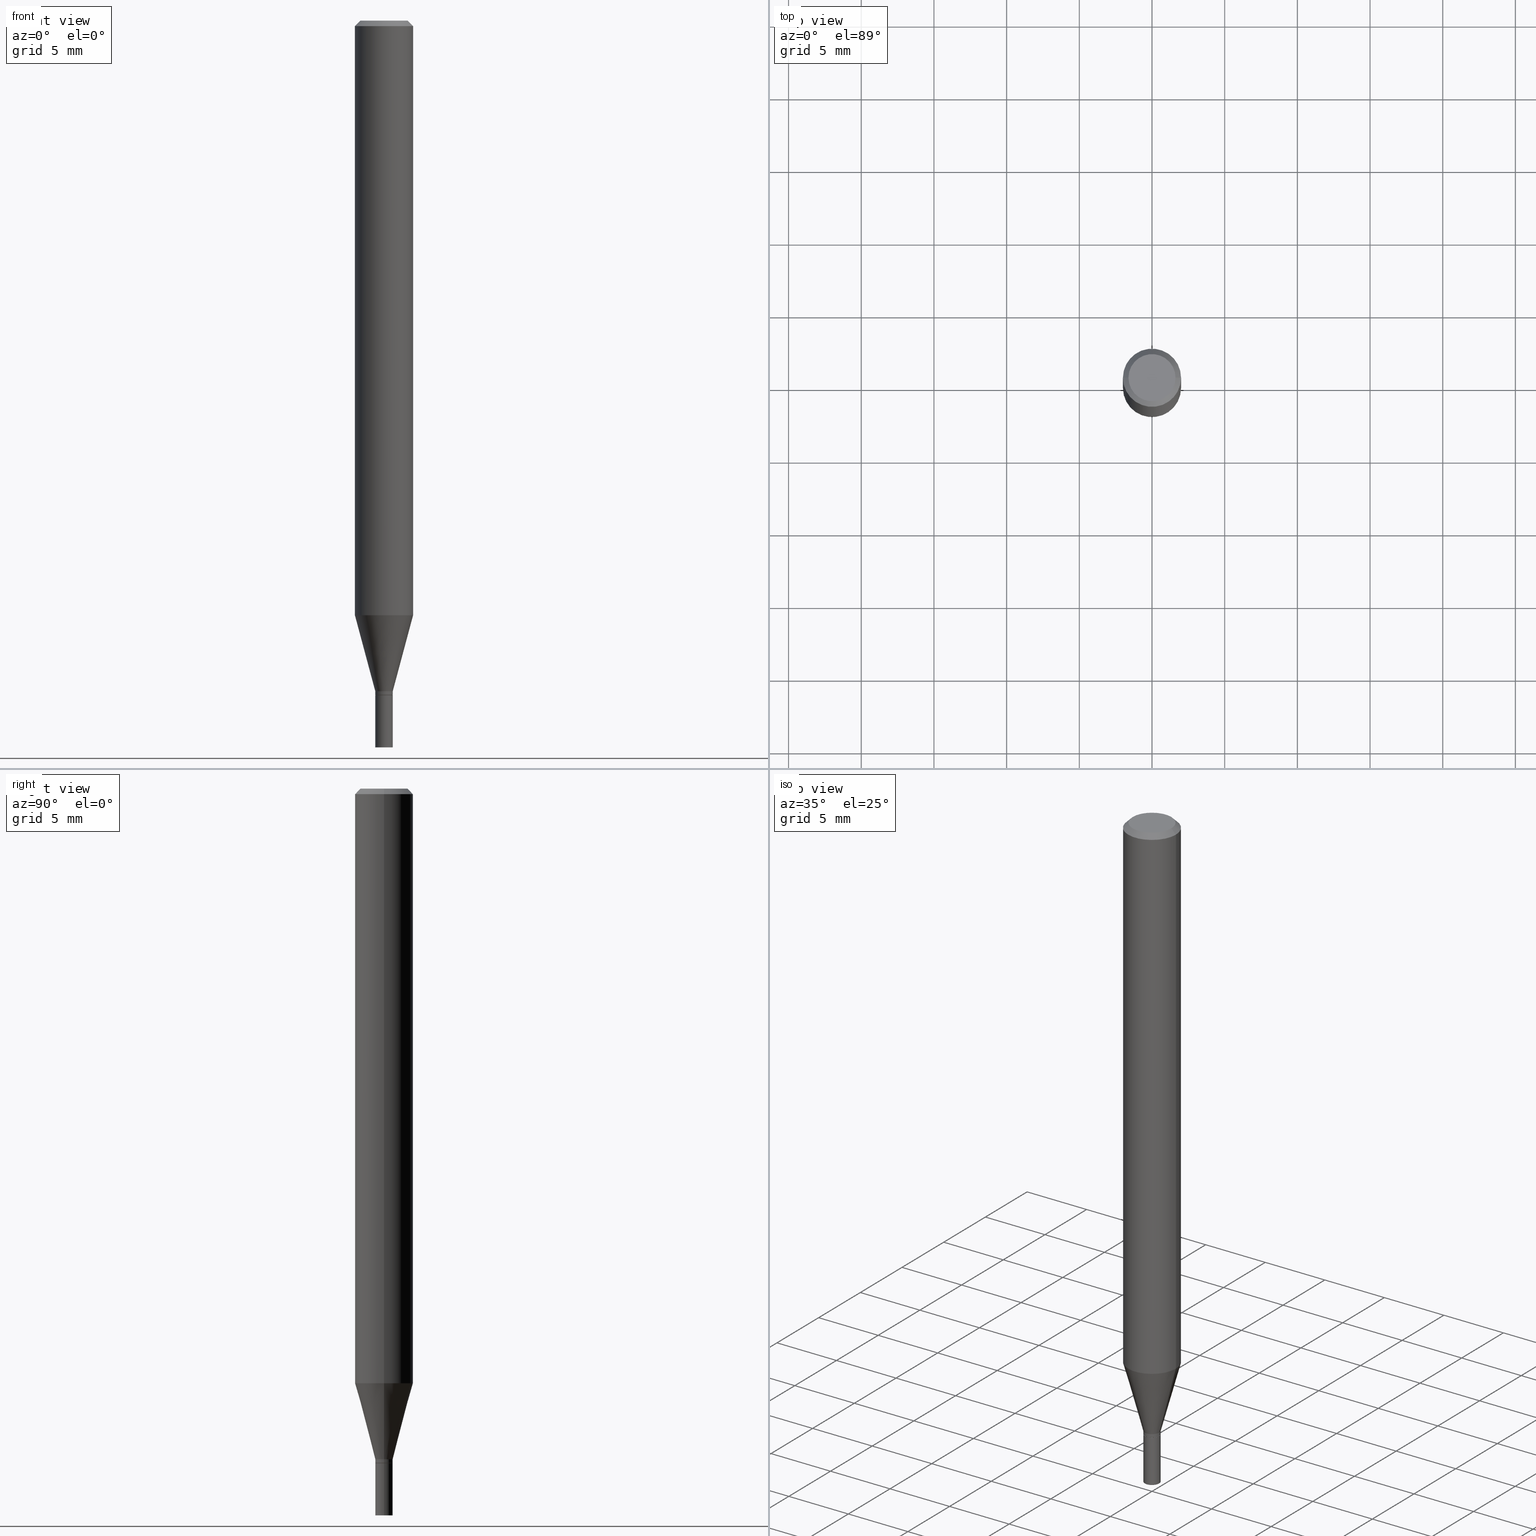
[diagram: canonical four-view strip — front | top / right | iso, engineering-drawing reading convention]
A machine part, canonical four-view strip (front | top / right | iso — engineering-drawing reading convention). The complete STEP part file that produces these views, byte-faithful:
ISO-10303-21;
HEADER;
FILE_DESCRIPTION (( 'STEP AP203' ),
    '1' );
FILE_NAME ('01885.STEP',
    '2024-03-20T02:26:14',
    ( '' ),
    ( '' ),
    'SwSTEP 2.0',
    'SolidWorks 2023',
    '' );
FILE_SCHEMA (( 'CONFIG_CONTROL_DESIGN' ));
ENDSEC;

DATA;
#1 = EDGE_CURVE ( 'NONE', #81, #277, #159, .T. ) ;
#2 = CC_DESIGN_PERSON_AND_ORGANIZATION_ASSIGNMENT ( #62, #101, ( #411 ) ) ;
#3 = FACE_OUTER_BOUND ( 'NONE', #235, .T. ) ;
#4 = ORIENTED_EDGE ( 'NONE', *, *, #184, .F. ) ;
#5 = CARTESIAN_POINT ( 'NONE',  ( 3.938861333544927198E-29, -5.623650077882775197E-15, -1.610677397962577695 ) ) ;
#6 = ORIENTED_EDGE ( 'NONE', *, *, #153, .F. ) ;
#7 = DIRECTION ( 'NONE',  ( 1.000000000000000000, -6.982962677686267499E-15, 4.876176775795936353E-29 ) ) ;
#8 = AXIS2_PLACEMENT_3D ( 'NONE', #54, #255, #25 ) ;
#9 = APPLICATION_CONTEXT ( 'configuration controlled 3d designs of mechanical parts and assemblies' ) ;
#10 = ORIENTED_EDGE ( 'NONE', *, *, #152, .T. ) ;
#11 = ORIENTED_EDGE ( 'NONE', *, *, #1, .T. ) ;
#12 = PLANE ( 'NONE',  #201 ) ;
#13 = EDGE_CURVE ( 'NONE', #268, #266, #401, .T. ) ;
#14 = LOCAL_TIME ( 22, 26, 14.00000000000000000, #213 ) ;
#15 = FACE_OUTER_BOUND ( 'NONE', #124, .T. ) ;
#16 = APPROVAL ( #218, 'UNSPECIFIED' ) ;
#17 = DIRECTION ( 'NONE',  ( -2.445468806185136597E-29, 3.491481338843145583E-15, 1.000000000000000000 ) ) ;
#18 = DIRECTION ( 'NONE',  ( -2.445468806185136597E-29, 3.491481338843145583E-15, 1.000000000000000000 ) ) ;
#19 = CALENDAR_DATE ( 2024, 19, 3 ) ;
#20 = VERTEX_POINT ( 'NONE', #251 ) ;
#21 = FACE_OUTER_BOUND ( 'NONE', #272, .T. ) ;
#22 = CALENDAR_DATE ( 2024, 19, 3 ) ;
#23 = ORIENTED_EDGE ( 'NONE', *, *, #408, .T. ) ;
#24 = ADVANCED_FACE ( 'NONE', ( #15 ), #12, .F. ) ;
#25 = DIRECTION ( 'NONE',  ( 1.000000000000000000, -6.982962677686265922E-15, 0.000000000000000000 ) ) ;
#26 = CLOSED_SHELL ( 'NONE', ( #444, #214, #245, #301 ) ) ;
#27 = AXIS2_PLACEMENT_3D ( 'NONE', #292, #287, #102 ) ;
#28 = ORIENTED_EDGE ( 'NONE', *, *, #139, .F. ) ;
#29 = APPROVAL ( #88, 'UNSPECIFIED' ) ;
#30 = LINE ( 'NONE', #456, #299 ) ;
#31 = DIRECTION ( 'NONE',  ( -2.445468806185136597E-29, 3.491481338843145583E-15, 1.000000000000000000 ) ) ;
#32 = CALENDAR_DATE ( 2024, 19, 3 ) ;
#33 = CONICAL_SURFACE ( 'NONE', #93, 0.02309999999999999901, 0.7853981633974739252 ) ;
#34 = CARTESIAN_POINT ( 'NONE',  ( 0.02309999999999999901, -6.539544547653212693E-15, -1.826800000000000201 ) ) ;
#35 = EDGE_CURVE ( 'NONE', #210, #81, #199, .T. ) ;
#36 = CARTESIAN_POINT ( 'NONE',  ( 0.000000000000000000, 0.000000000000000000, 0.000000000000000000 ) ) ;
#37 = CARTESIAN_POINT ( 'NONE',  ( 0.02360000000000000292, -1.647979191933959273E-16, 1.150777719087840955E-30 ) ) ;
#38 = DIRECTION ( 'NONE',  ( -0.7071067811865656694, 7.493145998870420424E-15, 0.7071067811865294761 ) ) ;
#39 = ORIENTED_EDGE ( 'NONE', *, *, #74, .T. ) ;
#40 = MECHANICAL_CONTEXT ( 'NONE', #429, 'mechanical' ) ;
#41 = EDGE_CURVE ( 'NONE', #277, #81, #120, .T. ) ;
#42 = CARTESIAN_POINT ( 'NONE',  ( 0.07875000000000001443, -6.173558388750569332E-15, -1.610677397962577695 ) ) ;
#43 = VERTEX_POINT ( 'NONE', #443 ) ;
#44 = ORIENTED_EDGE ( 'NONE', *, *, #297, .F. ) ;
#45 = DIRECTION ( 'NONE',  ( -2.445468806185136597E-29, 3.491481338843145583E-15, 1.000000000000000000 ) ) ;
#46 = VECTOR ( 'NONE', #203, 39.37007874015748143 ) ;
#47 = EDGE_LOOP ( 'NONE', ( #343, #157, #356, #91 ) ) ;
#48 = DIRECTION ( 'NONE',  ( -2.445468806185136597E-29, 3.491481338843145583E-15, 1.000000000000000000 ) ) ;
#49 = DIRECTION ( 'NONE',  ( -2.445468806185136597E-29, 3.491481338843145583E-15, 1.000000000000000000 ) ) ;
#50 = PERSON_AND_ORGANIZATION ( #260, #459 ) ;
#51 = ORIENTED_EDGE ( 'NONE', *, *, #41, .T. ) ;
#52 = DIRECTION ( 'NONE',  ( -2.445468806185136877E-29, 3.491481338843145188E-15, 1.000000000000000000 ) ) ;
#53 = CIRCLE ( 'NONE', #103, 0.07875000000000000056 ) ;
#54 = CARTESIAN_POINT ( 'NONE',  ( 3.668203209277705088E-31, -5.237222008264718399E-17, -0.01499999999999999944 ) ) ;
#55 = APPROVAL_ROLE ( '' ) ;
#56 = SECURITY_CLASSIFICATION ( '', '', #253 ) ;
#57 = DIRECTION ( 'NONE',  ( 2.438088387897960049E-29, -3.491481338843145188E-15, -1.000000000000000000 ) ) ;
#58 = ADVANCED_FACE ( 'NONE', ( #413 ), #420, .F. ) ;
#59 = VERTEX_POINT ( 'NONE', #314 ) ;
#60 = DIRECTION ( 'NONE',  ( 1.000000000000000000, -6.982962677686258033E-15, 0.000000000000000000 ) ) ;
#61 = DIRECTION ( 'NONE',  ( 1.000000000000000000, -6.982962677686278543E-15, 0.000000000000000000 ) ) ;
#62 = PERSON_AND_ORGANIZATION ( #260, #459 ) ;
#63 = DIRECTION ( 'NONE',  ( 2.438088387897960049E-29, -3.491481338843145188E-15, -1.000000000000000000 ) ) ;
#64 = ADVANCED_FACE ( 'NONE', ( #163 ), #126, .T. ) ;
#65 = DATE_TIME_ROLE ( 'creation_date' ) ;
#66 = AXIS2_PLACEMENT_3D ( 'NONE', #98, #419, #362 ) ;
#67 = DIRECTION ( 'NONE',  ( -2.445468806185136597E-29, 3.491481338843145583E-15, 1.000000000000000000 ) ) ;
#68 = DIRECTION ( 'NONE',  ( -2.445468806185136597E-29, 3.491481338843145583E-15, 1.000000000000000000 ) ) ;
#69 =( LENGTH_UNIT ( ) NAMED_UNIT ( * ) SI_UNIT ( $, .METRE. ) );
#70 = CIRCLE ( 'NONE', #212, 0.06375000000000000111 ) ;
#71 = LOCAL_TIME ( 22, 26, 14.00000000000000000, #177 ) ;
#72 = DIRECTION ( 'NONE',  ( 1.000000000000000000, -6.982962677686267499E-15, 4.876176775795935793E-29 ) ) ;
#73 = DIRECTION ( 'NONE',  ( -2.445468806185136597E-29, 3.491481338843145583E-15, 1.000000000000000000 ) ) ;
#74 = EDGE_CURVE ( 'NONE', #403, #185, #384, .T. ) ;
#75 = EDGE_CURVE ( 'NONE', #445, #403, #434, .T. ) ;
#76 = CC_DESIGN_PERSON_AND_ORGANIZATION_ASSIGNMENT ( #187, #133, ( #381 ) ) ;
#77 = ORIENTED_EDGE ( 'NONE', *, *, #304, .T. ) ;
#78 = CIRCLE ( 'NONE', #85, 0.02360000000000000292 ) ;
#79 = EDGE_LOOP ( 'NONE', ( #28, #51, #303, #400 ) ) ;
#80 = FACE_OUTER_BOUND ( 'NONE', #116, .T. ) ;
#81 = VERTEX_POINT ( 'NONE', #424 ) ;
#82 = FACE_OUTER_BOUND ( 'NONE', #371, .T. ) ;
#83 = ORIENTED_EDGE ( 'NONE', *, *, #408, .F. ) ;
#84 = AXIS2_PLACEMENT_3D ( 'NONE', #345, #278, #380 ) ;
#85 = AXIS2_PLACEMENT_3D ( 'NONE', #319, #348, #60 ) ;
#86 = LOCAL_TIME ( 22, 26, 14.00000000000000000, #293 ) ;
#87 = EDGE_LOOP ( 'NONE', ( #313, #226 ) ) ;
#88 = APPROVAL_STATUS ( 'not_yet_approved' ) ;
#89 = DESIGN_CONTEXT ( 'detailed design', #9, 'design' ) ;
#90 = CC_DESIGN_PERSON_AND_ORGANIZATION_ASSIGNMENT ( #142, #389, ( #411 ) ) ;
#91 = ORIENTED_EDGE ( 'NONE', *, *, #241, .T. ) ;
#92 = DIRECTION ( 'NONE',  ( 1.000000000000000000, -6.982962677686282488E-15, 0.000000000000000000 ) ) ;
#93 = AXIS2_PLACEMENT_3D ( 'NONE', #165, #17, #61 ) ;
#94 = FACE_OUTER_BOUND ( 'NONE', #79, .T. ) ;
#95 = DIRECTION ( 'NONE',  ( -2.445468806185136877E-29, 3.491481338843145188E-15, 1.000000000000000000 ) ) ;
#96 = LINE ( 'NONE', #286, #193 ) ;
#97 = CARTESIAN_POINT ( 'NONE',  ( -0.07875000000000000056, 5.595524044110789003E-16, -3.873661383575737792E-30 ) ) ;
#98 = CARTESIAN_POINT ( 'NONE',  ( 3.668203209277705088E-31, -5.237222008264718399E-17, -0.01499999999999999944 ) ) ;
#99 = DIRECTION ( 'NONE',  ( 1.000000000000000000, -6.982962677686261977E-15, 0.000000000000000000 ) ) ;
#100 = EDGE_CURVE ( 'NONE', #43, #158, #305, .T. ) ;
#101 = PERSON_AND_ORGANIZATION_ROLE ( 'design_supplier' ) ;
#102 = DIRECTION ( 'NONE',  ( 1.000000000000000000, -6.982962677686265922E-15, 4.876176775795935793E-29 ) ) ;
#103 = AXIS2_PLACEMENT_3D ( 'NONE', #137, #145, #170 ) ;
#104 = CARTESIAN_POINT ( 'NONE',  ( 0.07875000000000000056, -5.499083108677934443E-16, 3.839989210939299016E-30 ) ) ;
#105 = CYLINDRICAL_SURFACE ( 'NONE', #186, 0.02360000000000000292 ) ;
#106 = CC_DESIGN_DATE_AND_TIME_ASSIGNMENT ( #173, #322, ( #56 ) ) ;
#107 = CARTESIAN_POINT ( 'NONE',  ( -0.02360000000000019721, -6.208804283489852262E-15, -1.826300000000000034 ) ) ;
#108 = LINE ( 'NONE', #104, #202 ) ;
#109 = DIRECTION ( 'NONE',  ( -2.445468806185136877E-29, 3.491481338843145188E-15, 1.000000000000000000 ) ) ;
#110 = DIRECTION ( 'NONE',  ( -2.445468806185136597E-29, 3.491481338843145583E-15, 1.000000000000000000 ) ) ;
#111 = CLOSED_SHELL ( 'NONE', ( #270, #64, #355, #398, #334, #267, #263, #258, #24, #58, #323, #399 ) ) ;
#112 = EDGE_CURVE ( 'NONE', #268, #185, #108, .T. ) ;
#113 = AXIS2_PLACEMENT_3D ( 'NONE', #332, #146, #175 ) ;
#114 = LINE ( 'NONE', #383, #46 ) ;
#115 = CARTESIAN_POINT ( 'NONE',  ( 0.000000000000000000, 0.000000000000000000, 0.000000000000000000 ) ) ;
#116 = EDGE_LOOP ( 'NONE', ( #440, #166, #431, #151 ) ) ;
#117 = EDGE_CURVE ( 'NONE', #43, #231, #219, .T. ) ;
#118 = ORIENTED_EDGE ( 'NONE', *, *, #183, .F. ) ;
#119 = DIRECTION ( 'NONE',  ( -2.445468806185136597E-29, 3.491481338843145583E-15, 1.000000000000000000 ) ) ;
#120 = CIRCLE ( 'NONE', #464, 0.02360000000000019721 ) ;
#121 = LOCAL_TIME ( 22, 26, 14.00000000000000000, #244 ) ;
#122 = EDGE_LOOP ( 'NONE', ( #310, #238, #44, #285 ) ) ;
#123 = CARTESIAN_POINT ( 'NONE',  ( -0.02360000000000019721, 1.676880856393850451E-16, -1.160868681300167612E-30 ) ) ;
#124 = EDGE_LOOP ( 'NONE', ( #339, #249 ) ) ;
#125 = ORIENTED_EDGE ( 'NONE', *, *, #415, .T. ) ;
#126 = CONICAL_SURFACE ( 'NONE', #441, 0.02309999999999999901, 0.7853981633974739252 ) ;
#127 = DIRECTION ( 'NONE',  ( 1.000000000000000000, -6.982962677686261977E-15, 0.000000000000000000 ) ) ;
#128 = VECTOR ( 'NONE', #259, 39.37007874015748143 ) ;
#129 = CARTESIAN_POINT ( 'NONE',  ( 3.938861333544927198E-29, -5.623650077882775197E-15, -1.610677397962577695 ) ) ;
#130 = EDGE_CURVE ( 'NONE', #231, #210, #458, .T. ) ;
#131 = LINE ( 'NONE', #97, #247 ) ;
#132 = ORIENTED_EDGE ( 'NONE', *, *, #276, .F. ) ;
#133 = PERSON_AND_ORGANIZATION_ROLE ( 'creator' ) ;
#134 = CARTESIAN_POINT ( 'NONE',  ( 0.07875000000000000056, -5.926364374071552647E-16, -0.01499999999999999944 ) ) ;
#135 = DIRECTION ( 'NONE',  ( -2.445468806185136597E-29, 3.491481338843145583E-15, 1.000000000000000000 ) ) ;
#136 = AXIS2_PLACEMENT_3D ( 'NONE', #284, #18, #176 ) ;
#137 = CARTESIAN_POINT ( 'NONE',  ( 3.668203209277705088E-31, -5.237222008264718399E-17, -0.01499999999999999944 ) ) ;
#138 = APPROVAL_STATUS ( 'not_yet_approved' ) ;
#139 = EDGE_CURVE ( 'NONE', #277, #266, #30, .T. ) ;
#140 = DIRECTION ( 'NONE',  ( -2.445468806185136597E-29, 3.491481338843145583E-15, 1.000000000000000000 ) ) ;
#141 = DIRECTION ( 'NONE',  ( 1.000000000000000000, -6.982962677686258033E-15, 0.000000000000000000 ) ) ;
#142 = PERSON_AND_ORGANIZATION ( #260, #459 ) ;
#143 = PERSON_AND_ORGANIZATION_ROLE ( 'classification_officer' ) ;
#144 = DIRECTION ( 'NONE',  ( 1.000000000000000000, -6.982962677686282488E-15, 0.000000000000000000 ) ) ;
#145 = DIRECTION ( 'NONE',  ( -2.445468806185136597E-29, 3.491481338843145583E-15, 1.000000000000000000 ) ) ;
#146 = DIRECTION ( 'NONE',  ( -2.445468806185136597E-29, 3.491481338843145583E-15, 1.000000000000000000 ) ) ;
#147 = CARTESIAN_POINT ( 'NONE',  ( 3.668203209277705088E-31, -5.237222008264718399E-17, -0.01499999999999999944 ) ) ;
#148 = CARTESIAN_POINT ( 'NONE',  ( -0.02309999999999999901, -6.214102737838076242E-15, -1.826800000000000201 ) ) ;
#149 = CIRCLE ( 'NONE', #410, 0.02360000000000000292 ) ;
#150 = APPROVAL_PERSON_ORGANIZATION ( #50, #455, #55 ) ;
#151 = ORIENTED_EDGE ( 'NONE', *, *, #41, .F. ) ;
#152 = EDGE_CURVE ( 'NONE', #387, #307, #114, .T. ) ;
#153 = EDGE_CURVE ( 'NONE', #387, #59, #78, .T. ) ;
#154 = DIRECTION ( 'NONE',  ( -2.445468806185136597E-29, 3.491481338843145583E-15, 1.000000000000000000 ) ) ;
#155 = ORIENTED_EDGE ( 'NONE', *, *, #130, .F. ) ;
#156 = APPLICATION_PROTOCOL_DEFINITION ( 'international standard', 'config_control_design', 1994, #9 ) ;
#157 = ORIENTED_EDGE ( 'NONE', *, *, #75, .F. ) ;
#158 = VERTEX_POINT ( 'NONE', #279 ) ;
#159 = CIRCLE ( 'NONE', #84, 0.02360000000000019721 ) ;
#160 = CIRCLE ( 'NONE', #8, 0.07875000000000000056 ) ;
#161 = DIRECTION ( 'NONE',  ( 1.000000000000000000, -6.982962677686282488E-15, 0.000000000000000000 ) ) ;
#162 =( GEOMETRIC_REPRESENTATION_CONTEXT ( 3 ) GLOBAL_UNCERTAINTY_ASSIGNED_CONTEXT ( ( #275 ) ) GLOBAL_UNIT_ASSIGNED_CONTEXT ( ( #404, #197, #225 ) ) REPRESENTATION_CONTEXT ( 'NONE', 'WORKASPACE' ) );
#163 = FACE_OUTER_BOUND ( 'NONE', #122, .T. ) ;
#164 = CARTESIAN_POINT ( 'NONE',  ( 4.467382415139007590E-29, -6.378238109798658663E-15, -1.826799999999999979 ) ) ;
#165 = CARTESIAN_POINT ( 'NONE',  ( 4.467382415139008150E-29, -6.378238109798659452E-15, -1.826800000000000201 ) ) ;
#166 = ORIENTED_EDGE ( 'NONE', *, *, #130, .T. ) ;
#167 = DIRECTION ( 'NONE',  ( -2.445468806185136597E-29, 3.491481338843145583E-15, 1.000000000000000000 ) ) ;
#168 = ORIENTED_EDGE ( 'NONE', *, *, #35, .F. ) ;
#169 = VECTOR ( 'NONE', #327, 39.37007874015747433 ) ;
#170 = DIRECTION ( 'NONE',  ( 1.000000000000000000, -6.982962677686265922E-15, 0.000000000000000000 ) ) ;
#171 = EDGE_LOOP ( 'NONE', ( #438, #453, #211, #118 ) ) ;
#172 = CARTESIAN_POINT ( 'NONE',  ( 0.02360000000000019721, -6.541290288322634985E-15, -1.826300000000000034 ) ) ;
#173 = DATE_AND_TIME ( #361, #14 ) ;
#174 = CC_DESIGN_DATE_AND_TIME_ASSIGNMENT ( #316, #65, ( #381 ) ) ;
#175 = DIRECTION ( 'NONE',  ( 1.000000000000000000, -6.982962677686265922E-15, 4.947888571036530338E-29 ) ) ;
#176 = DIRECTION ( 'NONE',  ( 1.000000000000000000, -6.982962677686265922E-15, 4.876176775795935232E-29 ) ) ;
#177 = COORDINATED_UNIVERSAL_TIME_OFFSET ( 5, 0, .BEHIND. ) ;
#178 = CARTESIAN_POINT ( 'NONE',  ( 4.813905344975441835E-29, -6.872981015512731707E-15, -1.968500000000000139 ) ) ;
#179 = DIRECTION ( 'NONE',  ( 1.000000000000000000, -6.982962677686282488E-15, 0.000000000000000000 ) ) ;
#180 = CONICAL_SURFACE ( 'NONE', #236, 0.02360000000000019721, 0.2617993877991500740 ) ;
#181 = CARTESIAN_POINT ( 'NONE',  ( 0.06375000000000000111, -5.149965923825465084E-16, -7.585149652132491859E-16 ) ) ;
#182 = APPROVAL_DATE_TIME ( #331, #16 ) ;
#183 = EDGE_CURVE ( 'NONE', #307, #407, #149, .T. ) ;
#184 = EDGE_CURVE ( 'NONE', #403, #445, #70, .T. ) ;
#185 = VERTEX_POINT ( 'NONE', #418 ) ;
#186 = AXIS2_PLACEMENT_3D ( 'NONE', #397, #257, #72 ) ;
#187 = PERSON_AND_ORGANIZATION ( #260, #459 ) ;
#188 = ORIENTED_EDGE ( 'NONE', *, *, #100, .T. ) ;
#189 = EDGE_CURVE ( 'NONE', #445, #20, #96, .T. ) ;
#190 = CARTESIAN_POINT ( 'NONE',  ( 4.442194086435300812E-29, -6.342275852008574901E-15, -1.816500000000000226 ) ) ;
#191 = PLANE ( 'NONE',  #392 ) ;
#192 = ORIENTED_EDGE ( 'NONE', *, *, #13, .T. ) ;
#193 = VECTOR ( 'NONE', #365, 39.37007874015748854 ) ;
#194 = AXIS2_PLACEMENT_3D ( 'NONE', #115, #333, #372 ) ;
#195 = MANIFOLD_SOLID_BREP ( 'Body-Move/Copy2[1]', #26 ) ;
#196 = ORIENTED_EDGE ( 'NONE', *, *, #274, .F. ) ;
#197 =( NAMED_UNIT ( * ) PLANE_ANGLE_UNIT ( ) SI_UNIT ( $, .RADIAN. ) );
#198 = CC_DESIGN_PERSON_AND_ORGANIZATION_ASSIGNMENT ( #269, #376, ( #308 ) ) ;
#199 = LINE ( 'NONE', #452, #457 ) ;
#200 = EDGE_LOOP ( 'NONE', ( #4, #39, #350, #435 ) ) ;
#201 = AXIS2_PLACEMENT_3D ( 'NONE', #317, #57, #346 ) ;
#202 = VECTOR ( 'NONE', #462, 39.37007874015748143 ) ;
#203 = DIRECTION ( 'NONE',  ( -2.445468806185136877E-29, 3.491481338843145188E-15, 1.000000000000000000 ) ) ;
#204 = CARTESIAN_POINT ( 'NONE',  ( 4.467382415139007590E-29, -6.378238109798658663E-15, -1.826799999999999979 ) ) ;
#205 = CARTESIAN_POINT ( 'NONE',  ( 0.000000000000000000, 0.000000000000000000, 0.000000000000000000 ) ) ;
#206 = APPROVAL_DATE_TIME ( #450, #455 ) ;
#207 = DIRECTION ( 'NONE',  ( -2.438088387897960049E-29, 3.491481338843145188E-15, 1.000000000000000000 ) ) ;
#208 = DIRECTION ( 'NONE',  ( -1.000000000000000000, 6.982962677686265922E-15, -4.876176775795935793E-29 ) ) ;
#209 = CYLINDRICAL_SURFACE ( 'NONE', #136, 0.07875000000000000056 ) ;
#210 = VERTEX_POINT ( 'NONE', #172 ) ;
#211 = ORIENTED_EDGE ( 'NONE', *, *, #276, .T. ) ;
#212 = AXIS2_PLACEMENT_3D ( 'NONE', #446, #135, #283 ) ;
#213 = COORDINATED_UNIVERSAL_TIME_OFFSET ( 5, 0, .BEHIND. ) ;
#214 = ADVANCED_FACE ( 'NONE', ( #360 ), #454, .F. ) ;
#215 = DIRECTION ( 'NONE',  ( -2.445468806185136597E-29, 3.491481338843145583E-15, 1.000000000000000000 ) ) ;
#216 = DIRECTION ( 'NONE',  ( 1.000000000000000000, -6.982962677686282488E-15, 0.000000000000000000 ) ) ;
#217 = LINE ( 'NONE', #34, #451 ) ;
#218 = APPROVAL_STATUS ( 'not_yet_approved' ) ;
#219 = LINE ( 'NONE', #148, #281 ) ;
#220 = DIRECTION ( 'NONE',  ( -1.000000000000000000, 6.982962677686265922E-15, 0.000000000000000000 ) ) ;
#221 = DIRECTION ( 'NONE',  ( 1.000000000000000000, -6.982962677686267499E-15, 4.876176775795936353E-29 ) ) ;
#222 = CIRCLE ( 'NONE', #347, 0.07875000000000000056 ) ;
#223 = AXIS2_PLACEMENT_3D ( 'NONE', #352, #167, #179 ) ;
#224 = CARTESIAN_POINT ( 'NONE',  ( 4.467382415139008150E-29, -6.378238109798659452E-15, -1.826800000000000201 ) ) ;
#225 =( NAMED_UNIT ( * ) SI_UNIT ( $, .STERADIAN. ) SOLID_ANGLE_UNIT ( ) );
#226 = ORIENTED_EDGE ( 'NONE', *, *, #183, .T. ) ;
#227 = VECTOR ( 'NONE', #109, 39.37007874015748143 ) ;
#228 = ORIENTED_EDGE ( 'NONE', *, *, #233, .F. ) ;
#229 = ORIENTED_EDGE ( 'NONE', *, *, #370, .F. ) ;
#230 = CARTESIAN_POINT ( 'NONE',  ( 0.000000000000000000, 0.000000000000000000, 0.000000000000000000 ) ) ;
#231 = VERTEX_POINT ( 'NONE', #107 ) ;
#232 = DIRECTION ( 'NONE',  ( -2.445468806185136597E-29, 3.491481338843145583E-15, 1.000000000000000000 ) ) ;
#233 = EDGE_CURVE ( 'NONE', #185, #20, #160, .T. ) ;
#234 = PRODUCT_DEFINITION_SHAPE ( 'NONE', 'NONE',  #381 ) ;
#235 = EDGE_LOOP ( 'NONE', ( #417, #125, #338, #168 ) ) ;
#236 = AXIS2_PLACEMENT_3D ( 'NONE', #190, #45, #144 ) ;
#237 = AXIS2_PLACEMENT_3D ( 'NONE', #36, #232, #7 ) ;
#238 = ORIENTED_EDGE ( 'NONE', *, *, #117, .T. ) ;
#239 = APPROVAL_ROLE ( '' ) ;
#240 = CARTESIAN_POINT ( 'NONE',  ( 4.466159680735915349E-29, -6.376492369129237160E-15, -1.826300000000000034 ) ) ;
#241 = EDGE_CURVE ( 'NONE', #20, #185, #53, .T. ) ;
#242 = CARTESIAN_POINT ( 'NONE',  ( 4.467382415139008150E-29, -6.378238109798659452E-15, -1.826800000000000201 ) ) ;
#243 = ADVANCED_BREP_SHAPE_REPRESENTATION ( '01885', ( #195, #369, #194 ), #162 ) ;
#244 = COORDINATED_UNIVERSAL_TIME_OFFSET ( 5, 0, .BEHIND. ) ;
#245 = ADVANCED_FACE ( 'NONE', ( #393 ), #448, .T. ) ;
#246 = DIRECTION ( 'NONE',  ( -2.445468806185136597E-29, 3.491481338843145583E-15, 1.000000000000000000 ) ) ;
#247 = VECTOR ( 'NONE', #52, 39.37007874015748143 ) ;
#248 = CC_DESIGN_APPROVAL ( #16, ( #56 ) ) ;
#249 = ORIENTED_EDGE ( 'NONE', *, *, #184, .T. ) ;
#250 = CARTESIAN_POINT ( 'NONE',  ( -0.02360000000000000292, -6.457921477016311471E-15, -1.826799999999999979 ) ) ;
#251 = CARTESIAN_POINT ( 'NONE',  ( -0.07875000000000000056, -2.278458744571632534E-15, -0.01499999999999999944 ) ) ;
#252 = DIRECTION ( 'NONE',  ( -2.445468806185136597E-29, 3.491481338843145583E-15, 1.000000000000000000 ) ) ;
#253 = SECURITY_CLASSIFICATION_LEVEL ( 'unclassified' ) ;
#254 = AXIS2_PLACEMENT_3D ( 'NONE', #230, #110, #294 ) ;
#255 = DIRECTION ( 'NONE',  ( -2.445468806185136597E-29, 3.491481338843145583E-15, 1.000000000000000000 ) ) ;
#256 = CARTESIAN_POINT ( 'NONE',  ( 4.466159680735915349E-29, -6.376492369129237160E-15, -1.826300000000000034 ) ) ;
#257 = DIRECTION ( 'NONE',  ( -2.445468806185136597E-29, 3.491481338843145583E-15, 1.000000000000000000 ) ) ;
#258 = ADVANCED_FACE ( 'NONE', ( #423 ), #273, .T. ) ;
#259 = DIRECTION ( 'NONE',  ( -2.445468806185136877E-29, 3.491481338843145188E-15, 1.000000000000000000 ) ) ;
#260 = PERSON ( 'UNSPECIFIED', 'UNSPECIFIED', 'UNSPECIFIED', ('UNSPECIFIED'), ('UNSPECIFIED'), ('UNSPECIFIED') ) ;
#261 = LINE ( 'NONE', #425, #169 ) ;
#262 = CIRCLE ( 'NONE', #336, 0.02309999999999999901 ) ;
#263 = ADVANCED_FACE ( 'NONE', ( #21 ), #209, .T. ) ;
#264 = ORIENTED_EDGE ( 'NONE', *, *, #117, .F. ) ;
#265 = APPROVAL_DATE_TIME ( #432, #29 ) ;
#266 = VERTEX_POINT ( 'NONE', #324 ) ;
#267 = ADVANCED_FACE ( 'NONE', ( #94 ), #422, .T. ) ;
#268 = VERTEX_POINT ( 'NONE', #42 ) ;
#269 = PERSON_AND_ORGANIZATION ( #260, #459 ) ;
#270 = ADVANCED_FACE ( 'NONE', ( #3 ), #302, .T. ) ;
#271 = ORIENTED_EDGE ( 'NONE', *, *, #112, .F. ) ;
#272 = EDGE_LOOP ( 'NONE', ( #321, #379, #353, #280 ) ) ;
#273 = CONICAL_SURFACE ( 'NONE', #66, 0.07875000000000000056, 0.7853981633974735921 ) ;
#274 = EDGE_CURVE ( 'NONE', #158, #43, #262, .T. ) ;
#275 = UNCERTAINTY_MEASURE_WITH_UNIT (LENGTH_MEASURE( 1.000000000000000082E-05 ), #404, 'distance_accuracy_value', 'NONE');
#276 = EDGE_CURVE ( 'NONE', #59, #407, #426, .T. ) ;
#277 = VERTEX_POINT ( 'NONE', #463 ) ;
#278 = DIRECTION ( 'NONE',  ( -2.445468806185136597E-29, 3.491481338843145583E-15, 1.000000000000000000 ) ) ;
#279 = CARTESIAN_POINT ( 'NONE',  ( 0.02309999999999999901, -6.539544547653212693E-15, -1.826800000000000201 ) ) ;
#280 = ORIENTED_EDGE ( 'NONE', *, *, #241, .F. ) ;
#281 = VECTOR ( 'NONE', #38, 39.37007874015748143 ) ;
#282 = CIRCLE ( 'NONE', #329, 0.02360000000000000292 ) ;
#283 = DIRECTION ( 'NONE',  ( 1.000000000000000000, -6.982962677686265922E-15, 4.947888571036530338E-29 ) ) ;
#284 = CARTESIAN_POINT ( 'NONE',  ( 0.000000000000000000, 0.000000000000000000, 0.000000000000000000 ) ) ;
#285 = ORIENTED_EDGE ( 'NONE', *, *, #354, .F. ) ;
#286 = CARTESIAN_POINT ( 'NONE',  ( -0.07875000000000000056, 4.975360907851462665E-16, -0.01499999999999999944 ) ) ;
#287 = DIRECTION ( 'NONE',  ( -2.438088387897960049E-29, 3.491481338843145188E-15, 1.000000000000000000 ) ) ;
#288 = PERSON_AND_ORGANIZATION ( #260, #459 ) ;
#289 = EDGE_CURVE ( 'NONE', #266, #268, #222, .T. ) ;
#290 = DIRECTION ( 'NONE',  ( 0.7071067811865656694, -2.468850131082446387E-15, 0.7071067811865294761 ) ) ;
#291 = AXIS2_PLACEMENT_3D ( 'NONE', #204, #252, #388 ) ;
#292 = CARTESIAN_POINT ( 'NONE',  ( 4.848906058769445083E-29, -6.822858001242805551E-15, -1.968500000000000139 ) ) ;
#293 = COORDINATED_UNIVERSAL_TIME_OFFSET ( 5, 0, .BEHIND. ) ;
#294 = DIRECTION ( 'NONE',  ( 1.000000000000000000, -6.982962677686265922E-15, 4.876176775795935232E-29 ) ) ;
#295 = DIRECTION ( 'NONE',  ( 1.000000000000000000, -6.982962677686278543E-15, 0.000000000000000000 ) ) ;
#296 = CARTESIAN_POINT ( 'NONE',  ( -0.02360000000000000292, -6.457921477016311471E-15, -1.968500000000000139 ) ) ;
#297 = EDGE_CURVE ( 'NONE', #210, #231, #430, .T. ) ;
#298 = FACE_OUTER_BOUND ( 'NONE', #200, .T. ) ;
#299 = VECTOR ( 'NONE', #349, 39.37007874015747433 ) ;
#300 = ORIENTED_EDGE ( 'NONE', *, *, #139, .T. ) ;
#301 = ADVANCED_FACE ( 'NONE', ( #309 ), #191, .F. ) ;
#302 = CYLINDRICAL_SURFACE ( 'NONE', #328, 0.02360000000000019721 ) ;
#303 = ORIENTED_EDGE ( 'NONE', *, *, #370, .T. ) ;
#304 = EDGE_CURVE ( 'NONE', #266, #20, #131, .T. ) ;
#305 = CIRCLE ( 'NONE', #402, 0.02309999999999999901 ) ;
#306 = EDGE_LOOP ( 'NONE', ( #83, #6 ) ) ;
#307 = VERTEX_POINT ( 'NONE', #250 ) ;
#308 = PRODUCT ( '01885', '01885', '', ( #40 ) ) ;
#309 = FACE_OUTER_BOUND ( 'NONE', #87, .T. ) ;
#310 = ORIENTED_EDGE ( 'NONE', *, *, #274, .T. ) ;
#311 = CARTESIAN_POINT ( 'NONE',  ( 4.442194086435300812E-29, -6.342275852008574901E-15, -1.816500000000000226 ) ) ;
#312 = CIRCLE ( 'NONE', #291, 0.02360000000000000292 ) ;
#313 = ORIENTED_EDGE ( 'NONE', *, *, #315, .T. ) ;
#314 = CARTESIAN_POINT ( 'NONE',  ( 0.02360000000000000292, -7.037778934706127955E-15, -1.968500000000000139 ) ) ;
#315 = EDGE_CURVE ( 'NONE', #407, #307, #312, .T. ) ;
#316 = DATE_AND_TIME ( #22, #121 ) ;
#317 = CARTESIAN_POINT ( 'NONE',  ( 4.451638707024993845E-16, 0.06375000000000000111, -6.018394179578767011E-16 ) ) ;
#318 = AXIS2_PLACEMENT_3D ( 'NONE', #242, #207, #414 ) ;
#319 = CARTESIAN_POINT ( 'NONE',  ( 4.813905344975441835E-29, -6.872981015512731707E-15, -1.968500000000000139 ) ) ;
#320 = DIRECTION ( 'NONE',  ( 1.000000000000000000, -6.982962677686267499E-15, 4.876176775795935793E-29 ) ) ;
#321 = ORIENTED_EDGE ( 'NONE', *, *, #304, .F. ) ;
#322 = DATE_TIME_ROLE ( 'classification_date' ) ;
#323 = ADVANCED_FACE ( 'NONE', ( #359 ), #33, .T. ) ;
#324 = CARTESIAN_POINT ( 'NONE',  ( -0.07875000000000001443, -5.064097673471695607E-15, -1.610677397962577695 ) ) ;
#325 = APPROVAL_ROLE ( '' ) ;
#326 = DIRECTION ( 'NONE',  ( 0.7071067811865653363, -7.319954787623314421E-15, -0.7071067811865295871 ) ) ;
#327 = DIRECTION ( 'NONE',  ( 0.2588190451025213501, 1.565188264969621968E-15, 0.9659258262890682012 ) ) ;
#328 = AXIS2_PLACEMENT_3D ( 'NONE', #395, #68, #221 ) ;
#329 = AXIS2_PLACEMENT_3D ( 'NONE', #178, #119, #436 ) ;
#330 = CARTESIAN_POINT ( 'NONE',  ( 4.467382415139008150E-29, -6.378238109798659452E-15, -1.826800000000000201 ) ) ;
#331 = DATE_AND_TIME ( #32, #71 ) ;
#332 = CARTESIAN_POINT ( 'NONE',  ( 1.854924686453612983E-44, -2.648340846275329000E-30, -7.585149652132525386E-16 ) ) ;
#333 = DIRECTION ( 'NONE',  ( 0.000000000000000000, 0.000000000000000000, 1.000000000000000000 ) ) ;
#334 = ADVANCED_FACE ( 'NONE', ( #340 ), #180, .T. ) ;
#335 = SHAPE_DEFINITION_REPRESENTATION ( #234, #243 ) ;
#336 = AXIS2_PLACEMENT_3D ( 'NONE', #330, #31, #295 ) ;
#337 = EDGE_LOOP ( 'NONE', ( #196, #433 ) ) ;
#338 = ORIENTED_EDGE ( 'NONE', *, *, #1, .F. ) ;
#339 = ORIENTED_EDGE ( 'NONE', *, *, #75, .T. ) ;
#340 = FACE_OUTER_BOUND ( 'NONE', #375, .T. ) ;
#341 = VECTOR ( 'NONE', #326, 39.37007874015748854 ) ;
#342 = CC_DESIGN_SECURITY_CLASSIFICATION ( #56, ( #411 ) ) ;
#343 = ORIENTED_EDGE ( 'NONE', *, *, #74, .F. ) ;
#344 = PERSON_AND_ORGANIZATION ( #260, #459 ) ;
#345 = CARTESIAN_POINT ( 'NONE',  ( 4.442194086435300812E-29, -6.342275852008574901E-15, -1.816500000000000226 ) ) ;
#346 = DIRECTION ( 'NONE',  ( -1.000000000000000000, 6.982962677686265922E-15, -4.876176775795935793E-29 ) ) ;
#347 = AXIS2_PLACEMENT_3D ( 'NONE', #5, #154, #127 ) ;
#348 = DIRECTION ( 'NONE',  ( -2.445468806185136597E-29, 3.491481338843145583E-15, 1.000000000000000000 ) ) ;
#349 = DIRECTION ( 'NONE',  ( -0.2588190451025213501, 5.211531920934551042E-15, 0.9659258262890682012 ) ) ;
#350 = ORIENTED_EDGE ( 'NONE', *, *, #233, .T. ) ;
#351 = DIRECTION ( 'NONE',  ( -2.445468806185136597E-29, 3.491481338843145583E-15, 1.000000000000000000 ) ) ;
#352 = CARTESIAN_POINT ( 'NONE',  ( 4.442194086435300812E-29, -6.342275852008574901E-15, -1.816500000000000226 ) ) ;
#353 = ORIENTED_EDGE ( 'NONE', *, *, #112, .T. ) ;
#354 = EDGE_CURVE ( 'NONE', #158, #210, #217, .T. ) ;
#355 = ADVANCED_FACE ( 'NONE', ( #298 ), #416, .T. ) ;
#356 = ORIENTED_EDGE ( 'NONE', *, *, #189, .T. ) ;
#357 = AXIS2_PLACEMENT_3D ( 'NONE', #256, #67, #216 ) ;
#358 = APPROVAL_PERSON_ORGANIZATION ( #344, #29, #239 ) ;
#359 = FACE_OUTER_BOUND ( 'NONE', #374, .T. ) ;
#360 = FACE_OUTER_BOUND ( 'NONE', #306, .T. ) ;
#361 = CALENDAR_DATE ( 2024, 19, 3 ) ;
#362 = DIRECTION ( 'NONE',  ( -1.000000000000000000, 6.982962677686265922E-15, 0.000000000000000000 ) ) ;
#363 = CC_DESIGN_PERSON_AND_ORGANIZATION_ASSIGNMENT ( #391, #143, ( #56 ) ) ;
#364 = CARTESIAN_POINT ( 'NONE',  ( 0.02360000000000000292, -6.543036028992054122E-15, -1.826799999999999979 ) ) ;
#365 = DIRECTION ( 'NONE',  ( -0.7071067811865653363, 2.468850131082444021E-15, -0.7071067811865295871 ) ) ;
#366 = CYLINDRICAL_SURFACE ( 'NONE', #237, 0.02360000000000019721 ) ;
#367 = APPROVAL_PERSON_ORGANIZATION ( #288, #16, #325 ) ;
#368 = CYLINDRICAL_SURFACE ( 'NONE', #254, 0.07875000000000000056 ) ;
#369 = MANIFOLD_SOLID_BREP ( 'Body-Move/Copy2[2]', #111 ) ;
#370 = EDGE_CURVE ( 'NONE', #81, #268, #261, .T. ) ;
#371 = EDGE_LOOP ( 'NONE', ( #23, #10, #405, #132 ) ) ;
#372 = DIRECTION ( 'NONE',  ( 1.000000000000000000, 0.000000000000000000, 0.000000000000000000 ) ) ;
#373 = CC_DESIGN_APPROVAL ( #455, ( #411 ) ) ;
#374 = EDGE_LOOP ( 'NONE', ( #264, #188, #390, #155 ) ) ;
#375 = EDGE_LOOP ( 'NONE', ( #11, #300, #412, #229 ) ) ;
#376 = PERSON_AND_ORGANIZATION_ROLE ( 'design_owner' ) ;
#377 = EDGE_LOOP ( 'NONE', ( #192, #77, #228, #271 ) ) ;
#378 = AXIS2_PLACEMENT_3D ( 'NONE', #205, #215, #320 ) ;
#379 = ORIENTED_EDGE ( 'NONE', *, *, #289, .T. ) ;
#380 = DIRECTION ( 'NONE',  ( 1.000000000000000000, -6.982962677686282488E-15, 0.000000000000000000 ) ) ;
#381 = PRODUCT_DEFINITION ( 'UNKNOWN', '', #411, #89 ) ;
#382 = CARTESIAN_POINT ( 'NONE',  ( 4.467382415139008150E-29, -6.378238109798659452E-15, -1.826800000000000201 ) ) ;
#383 = CARTESIAN_POINT ( 'NONE',  ( -0.02360000000000000292, 1.676880856393836646E-16, -1.160868681300157803E-30 ) ) ;
#384 = LINE ( 'NONE', #134, #341 ) ;
#385 = AXIS2_PLACEMENT_3D ( 'NONE', #240, #49, #161 ) ;
#386 = COORDINATED_UNIVERSAL_TIME_OFFSET ( 5, 0, .BEHIND. ) ;
#387 = VERTEX_POINT ( 'NONE', #296 ) ;
#388 = DIRECTION ( 'NONE',  ( 1.000000000000000000, -6.982962677686258033E-15, 0.000000000000000000 ) ) ;
#389 = PERSON_AND_ORGANIZATION_ROLE ( 'creator' ) ;
#390 = ORIENTED_EDGE ( 'NONE', *, *, #354, .T. ) ;
#391 = PERSON_AND_ORGANIZATION ( #260, #459 ) ;
#392 = AXIS2_PLACEMENT_3D ( 'NONE', #439, #63, #208 ) ;
#393 = FACE_OUTER_BOUND ( 'NONE', #171, .T. ) ;
#394 = CARTESIAN_POINT ( 'NONE',  ( -0.06375000000000000111, 4.713499807438215436E-16, -7.585149652132556940E-16 ) ) ;
#395 = CARTESIAN_POINT ( 'NONE',  ( 0.000000000000000000, 0.000000000000000000, 0.000000000000000000 ) ) ;
#396 = AXIS2_PLACEMENT_3D ( 'NONE', #147, #460, #220 ) ;
#397 = CARTESIAN_POINT ( 'NONE',  ( 0.000000000000000000, 0.000000000000000000, 0.000000000000000000 ) ) ;
#398 = ADVANCED_FACE ( 'NONE', ( #428 ), #368, .T. ) ;
#399 = ADVANCED_FACE ( 'NONE', ( #80 ), #366, .T. ) ;
#400 = ORIENTED_EDGE ( 'NONE', *, *, #289, .F. ) ;
#401 = CIRCLE ( 'NONE', #409, 0.07875000000000000056 ) ;
#402 = AXIS2_PLACEMENT_3D ( 'NONE', #224, #73, #421 ) ;
#403 = VERTEX_POINT ( 'NONE', #181 ) ;
#404 =( CONVERSION_BASED_UNIT ( 'INCH', #461 ) LENGTH_UNIT ( ) NAMED_UNIT ( #427 ) );
#405 = ORIENTED_EDGE ( 'NONE', *, *, #315, .F. ) ;
#406 = LINE ( 'NONE', #123, #128 ) ;
#407 = VERTEX_POINT ( 'NONE', #364 ) ;
#408 = EDGE_CURVE ( 'NONE', #59, #387, #282, .T. ) ;
#409 = AXIS2_PLACEMENT_3D ( 'NONE', #129, #48, #99 ) ;
#410 = AXIS2_PLACEMENT_3D ( 'NONE', #164, #351, #141 ) ;
#411 = PRODUCT_DEFINITION_FORMATION_WITH_SPECIFIED_SOURCE ( 'ANY', '', #308, .NOT_KNOWN. ) ;
#412 = ORIENTED_EDGE ( 'NONE', *, *, #13, .F. ) ;
#413 = FACE_OUTER_BOUND ( 'NONE', #337, .T. ) ;
#414 = DIRECTION ( 'NONE',  ( 1.000000000000000000, -6.982962677686265922E-15, 4.876176775795935793E-29 ) ) ;
#415 = EDGE_CURVE ( 'NONE', #231, #277, #406, .T. ) ;
#416 = CONICAL_SURFACE ( 'NONE', #396, 0.07875000000000000056, 0.7853981633974735921 ) ;
#417 = ORIENTED_EDGE ( 'NONE', *, *, #297, .T. ) ;
#418 = CARTESIAN_POINT ( 'NONE',  ( 0.07875000000000000056, -6.022805309504406221E-16, -0.01499999999999999944 ) ) ;
#419 = DIRECTION ( 'NONE',  ( 2.445468806185136597E-29, -3.491481338843145583E-15, -1.000000000000000000 ) ) ;
#420 = PLANE ( 'NONE',  #318 ) ;
#421 = DIRECTION ( 'NONE',  ( 1.000000000000000000, -6.982962677686278543E-15, 0.000000000000000000 ) ) ;
#422 = CONICAL_SURFACE ( 'NONE', #223, 0.02360000000000019721, 0.2617993877991500740 ) ;
#423 = FACE_OUTER_BOUND ( 'NONE', #47, .T. ) ;
#424 = CARTESIAN_POINT ( 'NONE',  ( 0.02360000000000019721, -6.507073771201971937E-15, -1.816500000000000226 ) ) ;
#425 = CARTESIAN_POINT ( 'NONE',  ( 0.02360000000000019721, -6.507073771201971937E-15, -1.816500000000000226 ) ) ;
#426 = LINE ( 'NONE', #37, #227 ) ;
#427 = DIMENSIONAL_EXPONENTS ( 1.000000000000000000, 0.000000000000000000, 0.000000000000000000, 0.000000000000000000, 0.000000000000000000, 0.000000000000000000, 0.000000000000000000 ) ;
#428 = FACE_OUTER_BOUND ( 'NONE', #377, .T. ) ;
#429 = APPLICATION_CONTEXT ( 'configuration controlled 3d designs of mechanical parts and assemblies' ) ;
#430 = CIRCLE ( 'NONE', #385, 0.02360000000000019721 ) ;
#431 = ORIENTED_EDGE ( 'NONE', *, *, #35, .T. ) ;
#432 = DATE_AND_TIME ( #437, #86 ) ;
#433 = ORIENTED_EDGE ( 'NONE', *, *, #100, .F. ) ;
#434 = CIRCLE ( 'NONE', #113, 0.06375000000000000111 ) ;
#435 = ORIENTED_EDGE ( 'NONE', *, *, #189, .F. ) ;
#436 = DIRECTION ( 'NONE',  ( 1.000000000000000000, -6.982962677686258033E-15, 0.000000000000000000 ) ) ;
#437 = CALENDAR_DATE ( 2024, 19, 3 ) ;
#438 = ORIENTED_EDGE ( 'NONE', *, *, #152, .F. ) ;
#439 = CARTESIAN_POINT ( 'NONE',  ( 1.647979191934405719E-16, 0.02359999999999362261, -1.826799999999999979 ) ) ;
#440 = ORIENTED_EDGE ( 'NONE', *, *, #415, .F. ) ;
#441 = AXIS2_PLACEMENT_3D ( 'NONE', #382, #246, #449 ) ;
#442 = CC_DESIGN_APPROVAL ( #29, ( #381 ) ) ;
#443 = CARTESIAN_POINT ( 'NONE',  ( -0.02309999999999999901, -6.211453510663963463E-15, -1.826800000000000201 ) ) ;
#444 = ADVANCED_FACE ( 'NONE', ( #82 ), #105, .T. ) ;
#445 = VERTEX_POINT ( 'NONE', #394 ) ;
#446 = CARTESIAN_POINT ( 'NONE',  ( 1.854924686453612983E-44, -2.648340846275329000E-30, -7.585149652132525386E-16 ) ) ;
#447 = PRODUCT_RELATED_PRODUCT_CATEGORY ( 'detail', '', ( #308 ) ) ;
#448 = CYLINDRICAL_SURFACE ( 'NONE', #378, 0.02360000000000000292 ) ;
#449 = DIRECTION ( 'NONE',  ( 1.000000000000000000, -6.982962677686278543E-15, 0.000000000000000000 ) ) ;
#450 = DATE_AND_TIME ( #19, #465 ) ;
#451 = VECTOR ( 'NONE', #290, 39.37007874015748143 ) ;
#452 = CARTESIAN_POINT ( 'NONE',  ( 0.02360000000000019721, -1.647979191933972832E-16, 1.150777719087850589E-30 ) ) ;
#453 = ORIENTED_EDGE ( 'NONE', *, *, #153, .T. ) ;
#454 = PLANE ( 'NONE',  #27 ) ;
#455 = APPROVAL ( #138, 'UNSPECIFIED' ) ;
#456 = CARTESIAN_POINT ( 'NONE',  ( -0.02360000000000019721, -6.174587766369189215E-15, -1.816500000000000226 ) ) ;
#457 = VECTOR ( 'NONE', #95, 39.37007874015748143 ) ;
#458 = CIRCLE ( 'NONE', #357, 0.02360000000000019721 ) ;
#459 = ORGANIZATION ( 'UNSPECIFIED', 'UNSPECIFIED', '' ) ;
#460 = DIRECTION ( 'NONE',  ( 2.445468806185136597E-29, -3.491481338843145583E-15, -1.000000000000000000 ) ) ;
#461 = LENGTH_MEASURE_WITH_UNIT ( LENGTH_MEASURE( 0.02539999999999999897 ), #69 );
#462 = DIRECTION ( 'NONE',  ( -2.445468806185136877E-29, 3.491481338843145188E-15, 1.000000000000000000 ) ) ;
#463 = CARTESIAN_POINT ( 'NONE',  ( -0.02360000000000019721, -5.619342719920443200E-15, -1.816500000000000226 ) ) ;
#464 = AXIS2_PLACEMENT_3D ( 'NONE', #311, #140, #92 ) ;
#465 = LOCAL_TIME ( 22, 26, 14.00000000000000000, #386 ) ;
#466 = APPLICATION_PROTOCOL_DEFINITION ( 'international standard', 'config_control_design', 1994, #429 ) ;
ENDSEC;
END-ISO-10303-21;
